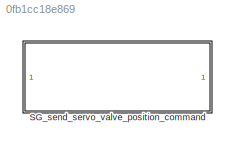
MODEL slx_0fb1cc18e869
KIND library
CONFIG AbsTol = auto
CONFIG EnableMultiTasking = off
CONFIG FixedStep = auto
CONFIG MaxStep = auto
CONFIG MinStep = auto
CONFIG RelTol = 1e-3
CONFIG SampleTimeConstraint = Unconstrained
CONFIG SolverName = VariableStepAuto
CONFIG StartTime = 0.0
CONFIG StopTime = 10.0
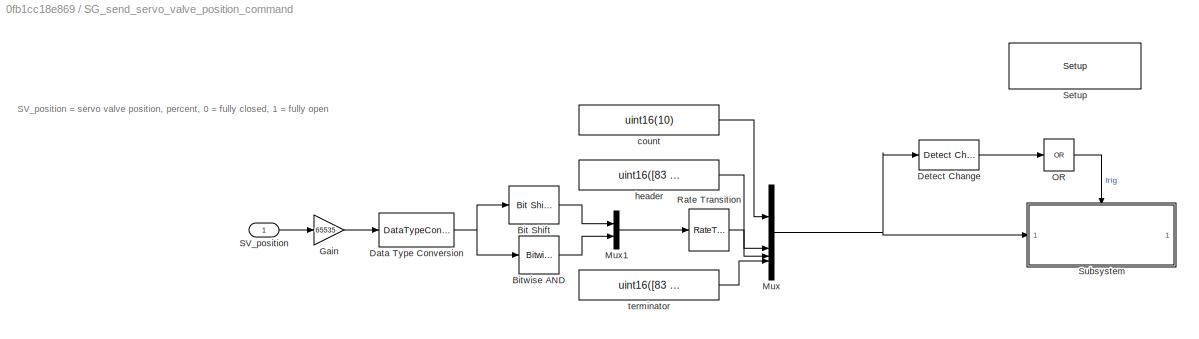
BLOCK [SubSystem] SG_send_servo_valve_position_command
BLOCK [Reference] SG_send_servo_valve_position_command/Bit Shift  REF=hdlsllib/Logic and Bit
Operations/Bit Shift
  SourceBlock = hdlsllib/Logic and Bit\nOperations/Bit Shift
  SourceType = Bit Shift
BLOCK [Reference] SG_send_servo_valve_position_command/Bitwise AND  REF=simulink/Logic and Bit
Operations/Bitwise
Operator
  LibrarySourceBlock = simulink/Quick Insert/Logic and Bit\nOperations/Bitwise AND
  SourceBlock = simulink/Logic and Bit\nOperations/Bitwise\nOperator
  SourceType = Bitwise Operator
BLOCK [DataTypeConversion] SG_send_servo_valve_position_command/Data Type Conversion
  OutDataTypeStr = uint16
  RndMeth = Floor
  SaturateOnIntegerOverflow = off
BLOCK [Reference] SG_send_servo_valve_position_command/Detect Change  REF=simulink/Logic and Bit
Operations/Detect
Change
  SourceBlock = simulink/Logic and Bit\nOperations/Detect\nChange
  SourceType = Detect Change
BLOCK [Gain] SG_send_servo_valve_position_command/Gain
  Gain = 65535
BLOCK [Mux] SG_send_servo_valve_position_command/Mux
  DisplayOption = bar
BLOCK [Mux] SG_send_servo_valve_position_command/Mux1
  DisplayOption = bar
  Inputs = 2
BLOCK [Logic] SG_send_servo_valve_position_command/OR
  AllPortsSameDT = off
  IconShape = distinctive
  Inputs = 1
  Operator = OR
  OutDataTypeStr = boolean
BLOCK [RateTransition] SG_send_servo_valve_position_command/Rate Transition
BLOCK [Inport] SG_send_servo_valve_position_command/SV_position
BLOCK [Reference] SG_send_servo_valve_position_command/Setup  REF=slrealtimeseriallib/Mainboard/Setup
  SourceBlock = slrealtimeseriallib/Mainboard/Setup
  SourceType = Setup
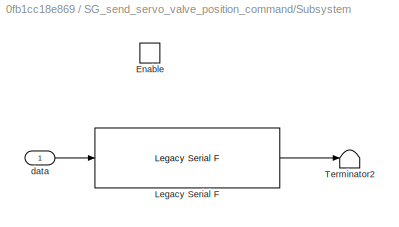
BLOCK [SubSystem] SG_send_servo_valve_position_command/Subsystem
BLOCK [EnablePort] SG_send_servo_valve_position_command/Subsystem/Enable
BLOCK [Reference] SG_send_servo_valve_position_command/Subsystem/Legacy Serial F  REF=slrealtimeseriallib/Mainboard/Legacy Serial F
  SourceBlock = slrealtimeseriallib/Mainboard/Legacy Serial F
  SourceType = Serial F
BLOCK [Terminator] SG_send_servo_valve_position_command/Subsystem/Terminator2
BLOCK [Inport] SG_send_servo_valve_position_command/Subsystem/data
BLOCK [Constant] SG_send_servo_valve_position_command/count
  Value = uint16(10)
BLOCK [Constant] SG_send_servo_valve_position_command/header
  Value = uint16([83 86 83 83])
BLOCK [Constant] SG_send_servo_valve_position_command/terminator
  Value = uint16([83 86 83 69])
ANNOTATION SG_send_servo_valve_position_command: SV_position = servo valve position, percent, 0 = fully closed, 1 = fully open
LINE SG_send_servo_valve_position_command/Bit Shift:1 -> SG_send_servo_valve_position_command/Mux1:1
LINE SG_send_servo_valve_position_command/Bitwise AND:1 -> SG_send_servo_valve_position_command/Mux1:2
NET SG_send_servo_valve_position_command/Data Type Conversion:1 -> SG_send_servo_valve_position_command/Bit Shift:1, SG_send_servo_valve_position_command/Bitwise AND:1
LINE SG_send_servo_valve_position_command/Detect Change:1 -> SG_send_servo_valve_position_command/OR:1
LINE SG_send_servo_valve_position_command/Gain:1 -> SG_send_servo_valve_position_command/Data Type Conversion:1
LINE SG_send_servo_valve_position_command/Mux1:1 -> SG_send_servo_valve_position_command/Rate Transition:1
NET SG_send_servo_valve_position_command/Mux:1 -> SG_send_servo_valve_position_command/Detect Change:1, SG_send_servo_valve_position_command/Subsystem:1
LINE SG_send_servo_valve_position_command/OR:1 -> SG_send_servo_valve_position_command/Subsystem:enable
LINE SG_send_servo_valve_position_command/Rate Transition:1 -> SG_send_servo_valve_position_command/Mux:3
LINE SG_send_servo_valve_position_command/SV_position:1 -> SG_send_servo_valve_position_command/Gain:1
LINE SG_send_servo_valve_position_command/Subsystem/Legacy Serial F:1 -> SG_send_servo_valve_position_command/Subsystem/Terminator2:1
LINE SG_send_servo_valve_position_command/Subsystem/data:1 -> SG_send_servo_valve_position_command/Subsystem/Legacy Serial F:1
LINE SG_send_servo_valve_position_command/count:1 -> SG_send_servo_valve_position_command/Mux:1
LINE SG_send_servo_valve_position_command/header:1 -> SG_send_servo_valve_position_command/Mux:2
LINE SG_send_servo_valve_position_command/terminator:1 -> SG_send_servo_valve_position_command/Mux:4
note: NET lines group one-source signal fan-out (src -> all destinations, sorted); 1:1 wires keep LINE
